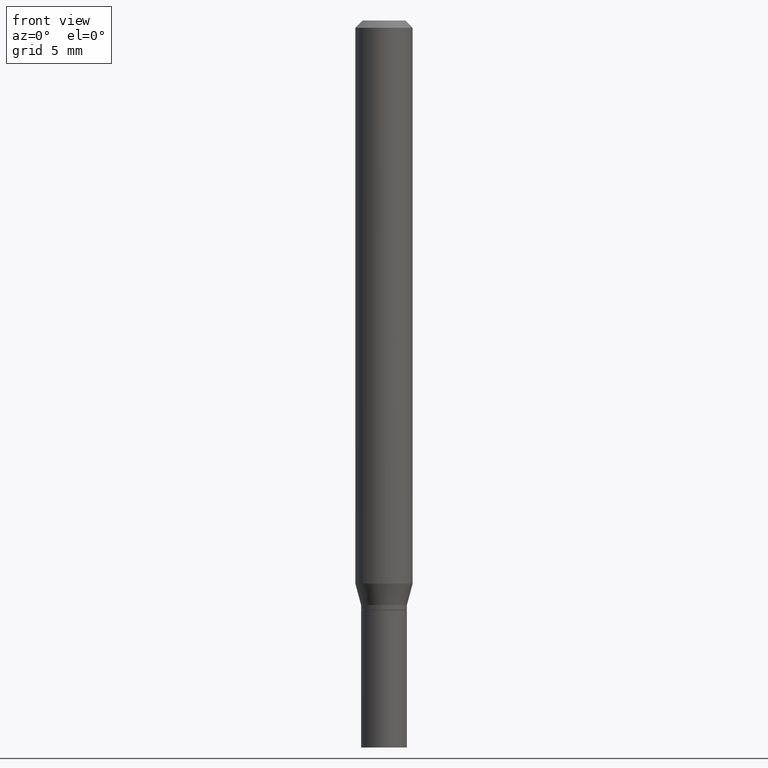
[diagram: clean part render]
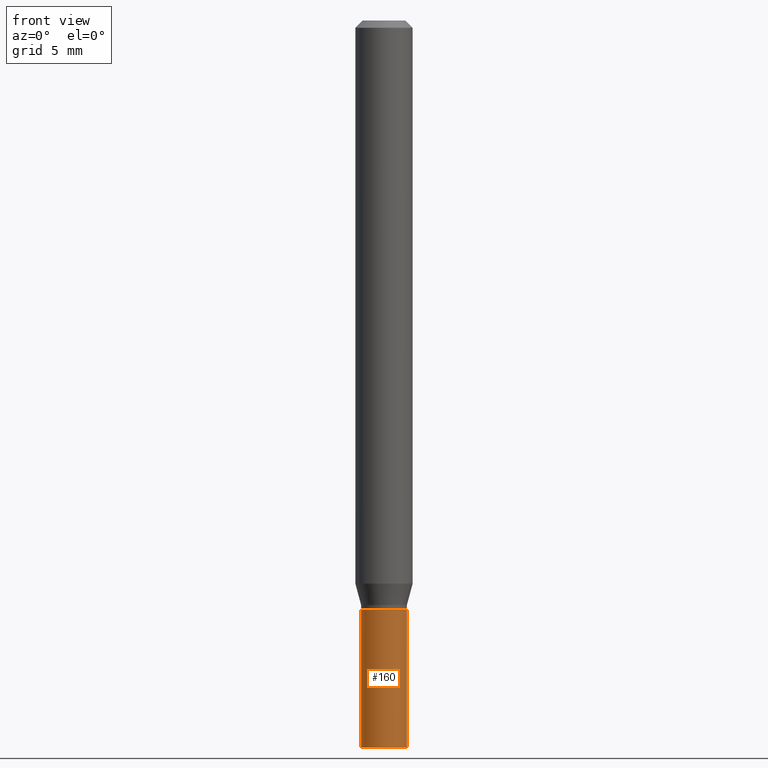
[diagram: same view with one face highlighted and labeled with its STEP entity id]
A machine part, front view. The second image highlights one B-rep face of the part: STEP entity #160.
In plain terms, the highlighted cylindrical surface (edge-blend (fillet) strip) has radius 1.2001 mm, axis along (-0, 0, 1).
Its self-contained STEP definition (entity closure, byte-faithful):
#37 = CARTESIAN_POINT ( 'NONE',  ( 0.04724999999999999339, -3.299449865206760567E-16, 2.303993526563579480E-30 ) ) ;
#67 = CARTESIAN_POINT ( 'NONE',  ( 0.000000000000000000, 0.000000000000000000, 0.000000000000000000 ) ) ;
#71 = AXIS2_PLACEMENT_3D ( 'NONE', #67, #357, #194 ) ;
#103 = VECTOR ( 'NONE', #452, 39.37007874015748143 ) ;
#114 = EDGE_CURVE ( 'NONE', #288, #338, #376, .T. ) ;
#117 = DIRECTION ( 'NONE',  ( 1.000000000000000000, -6.982962677686266711E-15, 0.000000000000000000 ) ) ;
#138 = VERTEX_POINT ( 'NONE', #387 ) ;
#142 = CARTESIAN_POINT ( 'NONE',  ( 0.04724999999999999339, -4.577332035223362218E-15, -1.216500000000000137 ) ) ;
#143 = LINE ( 'NONE', #37, #312 ) ;
#144 = EDGE_CURVE ( 'NONE', #240, #338, #143, .T. ) ;
#147 = CARTESIAN_POINT ( 'NONE',  ( -0.04724999999999999339, -4.406573085837055149E-15, -1.216500000000000137 ) ) ;
#159 = FACE_OUTER_BOUND ( 'NONE', #251, .T. ) ;
#160 = ADVANCED_FACE ( 'NONE', ( #159 ), #364, .T. ) ;
#161 = ORIENTED_EDGE ( 'NONE', *, *, #114, .F. ) ;
#171 = CARTESIAN_POINT ( 'NONE',  ( 2.974912802724219302E-29, -4.247387048702686999E-15, -1.216500000000000137 ) ) ;
#181 = DIRECTION ( 'NONE',  ( -2.445468806185136597E-29, 3.491481338843145583E-15, 1.000000000000000000 ) ) ;
#194 = DIRECTION ( 'NONE',  ( 1.000000000000000000, -6.982962677686266711E-15, 4.876176775795936353E-29 ) ) ;
#195 = CARTESIAN_POINT ( 'NONE',  ( 3.668203209277704895E-29, -5.237222008264718177E-15, -1.500000000000000222 ) ) ;
#197 = ORIENTED_EDGE ( 'NONE', *, *, #308, .T. ) ;
#210 = EDGE_CURVE ( 'NONE', #138, #288, #273, .T. ) ;
#212 = AXIS2_PLACEMENT_3D ( 'NONE', #171, #181, #460 ) ;
#230 = AXIS2_PLACEMENT_3D ( 'NONE', #195, #325, #117 ) ;
#235 = CARTESIAN_POINT ( 'NONE',  ( -0.04724999999999999339, 3.357314426466472909E-16, -2.324196830145442815E-30 ) ) ;
#240 = VERTEX_POINT ( 'NONE', #277 ) ;
#251 = EDGE_LOOP ( 'NONE', ( #356, #197, #405, #161 ) ) ;
#273 = LINE ( 'NONE', #235, #103 ) ;
#277 = CARTESIAN_POINT ( 'NONE',  ( 0.04724999999999999339, -5.567166994785394973E-15, -1.500000000000000222 ) ) ;
#288 = VERTEX_POINT ( 'NONE', #147 ) ;
#299 = DIRECTION ( 'NONE',  ( -2.445468806185136877E-29, 3.491481338843145188E-15, 1.000000000000000000 ) ) ;
#308 = EDGE_CURVE ( 'NONE', #138, #240, #345, .T. ) ;
#312 = VECTOR ( 'NONE', #299, 39.37007874015748143 ) ;
#325 = DIRECTION ( 'NONE',  ( -2.445468806185136597E-29, 3.491481338843145583E-15, 1.000000000000000000 ) ) ;
#338 = VERTEX_POINT ( 'NONE', #142 ) ;
#345 = CIRCLE ( 'NONE', #230, 0.04724999999999999339 ) ;
#356 = ORIENTED_EDGE ( 'NONE', *, *, #210, .F. ) ;
#357 = DIRECTION ( 'NONE',  ( -2.445468806185136597E-29, 3.491481338843145583E-15, 1.000000000000000000 ) ) ;
#364 = CYLINDRICAL_SURFACE ( 'NONE', #71, 0.04724999999999999339 ) ;
#376 = CIRCLE ( 'NONE', #212, 0.04724999999999999339 ) ;
#387 = CARTESIAN_POINT ( 'NONE',  ( -0.04724999999999999339, -4.406573085837055149E-15, -1.500000000000000222 ) ) ;
#405 = ORIENTED_EDGE ( 'NONE', *, *, #144, .T. ) ;
#452 = DIRECTION ( 'NONE',  ( -2.445468806185136877E-29, 3.491481338843145188E-15, 1.000000000000000000 ) ) ;
#460 = DIRECTION ( 'NONE',  ( 1.000000000000000000, -6.982962677686256455E-15, 0.000000000000000000 ) ) ;